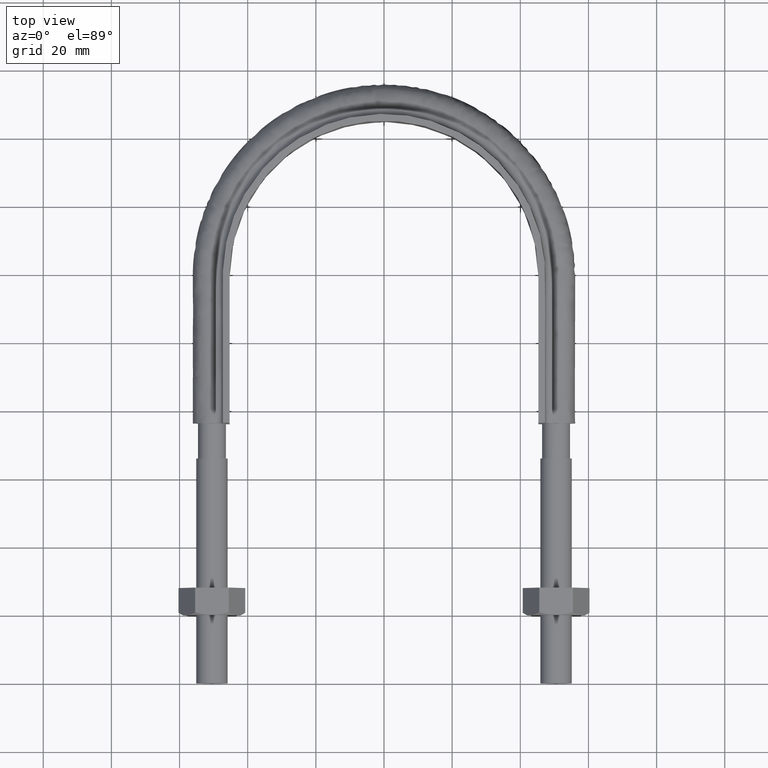
[diagram: clean part render]
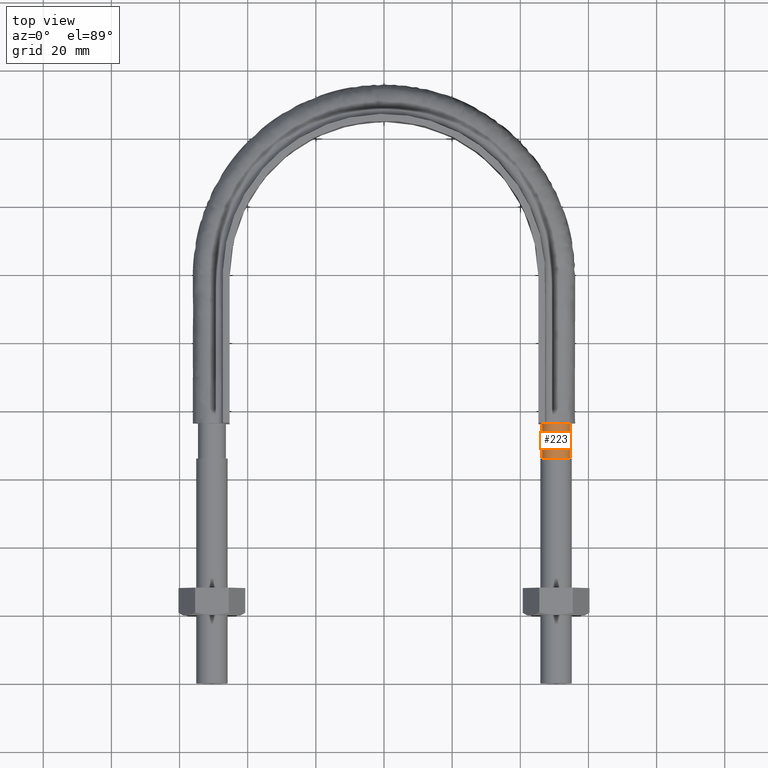
[diagram: same view with one face highlighted and labeled with its STEP entity id]
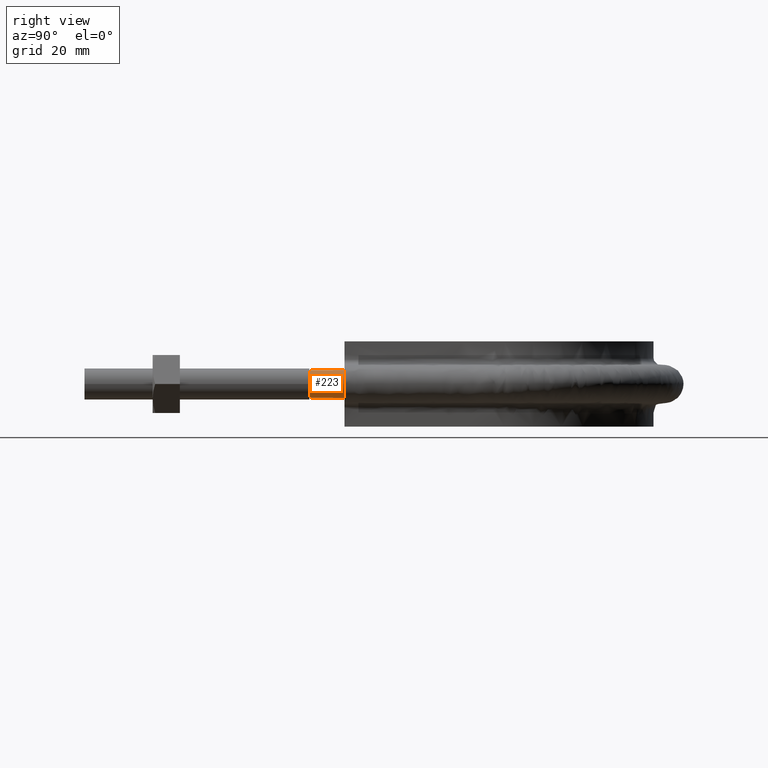
[diagram: same view with one face highlighted and labeled with its STEP entity id]
A machine part, top view. The second image highlights one B-rep face of the part: STEP entity #223.
A second angle (right view) of the same face is appended — the face is thin or edge-on in the first view.
In plain terms, the highlighted cylindrical surface (bore or boss wall) has radius 4.1 mm, axis along (0, 1, 0).
Its self-contained STEP definition (entity closure, byte-faithful):
#223 = ADVANCED_FACE( '', ( #306, #307 ), #308, .T. );
#306 = FACE_OUTER_BOUND( '', #637, .T. );
#307 = FACE_OUTER_BOUND( '', #638, .T. );
#308 = CYLINDRICAL_SURFACE( '', #639, 4.10000000000000 );
#637 = EDGE_LOOP( '', ( #1489, #1490, #1491, #1492, #1493, #1494, #1495 ) );
#638 = EDGE_LOOP( '', ( #1496 ) );
#639 = AXIS2_PLACEMENT_3D( '', #1497, #1498, #1499 );
#1489 = ORIENTED_EDGE( '', *, *, #2013, .T. );
#1490 = ORIENTED_EDGE( '', *, *, #2014, .T. );
#1491 = ORIENTED_EDGE( '', *, *, #2015, .T. );
#1492 = ORIENTED_EDGE( '', *, *, #2016, .T. );
#1493 = ORIENTED_EDGE( '', *, *, #2017, .T. );
#1494 = ORIENTED_EDGE( '', *, *, #2018, .T. );
#1495 = ORIENTED_EDGE( '', *, *, #2019, .T. );
#1496 = ORIENTED_EDGE( '', *, *, #2020, .T. );
#1497 = CARTESIAN_POINT( '', ( 50.5000000000000, 76.3000000000000, 2.33899813580074E-015 ) );
#1498 = DIRECTION( '', ( 2.44921270764475E-016, 1.00000000000000, 6.12303176911189E-017 ) );
#1499 = DIRECTION( '', ( 1.00000000000000, -2.44921270764475E-016, -7.49830360911069E-033 ) );
#2013 = EDGE_CURVE( '', #2171, #2169, #2180, .T. );
#2014 = EDGE_CURVE( '', #2169, #2167, #2181, .T. );
#2015 = EDGE_CURVE( '', #2167, #2166, #2182, .T. );
#2016 = EDGE_CURVE( '', #2166, #2177, #2183, .T. );
#2017 = EDGE_CURVE( '', #2177, #2175, #2184, .T. );
#2018 = EDGE_CURVE( '', #2175, #2173, #2185, .T. );
#2019 = EDGE_CURVE( '', #2173, #2171, #2186, .T. );
#2020 = EDGE_CURVE( '', #2187, #2187, #2188, .F. );
#2166 = VERTEX_POINT( '', #2437 );
#2167 = VERTEX_POINT( '', #2438 );
#2169 = VERTEX_POINT( '', #2443 );
#2171 = VERTEX_POINT( '', #2448 );
#2173 = VERTEX_POINT( '', #2453 );
#2175 = VERTEX_POINT( '', #2458 );
#2177 = VERTEX_POINT( '', #2463 );
#2180 = CIRCLE( '', #2472, 4.10000000000000 );
#2181 = CIRCLE( '', #2473, 4.10000000000000 );
#2182 = CIRCLE( '', #2474, 4.10000000000000 );
#2183 = CIRCLE( '', #2475, 4.10000000000000 );
#2184 = CIRCLE( '', #2476, 4.10000000000000 );
#2185 = CIRCLE( '', #2477, 4.10000000000000 );
#2186 = CIRCLE( '', #2478, 4.10000000000000 );
#2187 = VERTEX_POINT( '', #2479 );
#2188 = CIRCLE( '', #2480, 4.10000000000000 );
#2437 = CARTESIAN_POINT( '', ( 46.4000000000000, 76.3000000000000, 4.33680868994202E-016 ) );
#2438 = CARTESIAN_POINT( '', ( 47.9436918123790, 76.3000000000000, 3.20550907811873 ) );
#2443 = CARTESIAN_POINT( '', ( 51.4123358292208, 76.3000000000000, 3.99720443994551 ) );
#2448 = CARTESIAN_POINT( '', ( 54.1939723583999, 76.3000000000000, 1.77892333038198 ) );
#2453 = CARTESIAN_POINT( '', ( 54.1939723583998, 76.3000000000000, -1.77892333038233 ) );
#2458 = CARTESIAN_POINT( '', ( 51.4123358292205, 76.3000000000000, -3.99720443994556 ) );
#2463 = CARTESIAN_POINT( '', ( 47.9436918123792, 76.3000000000000, -3.20550907811892 ) );
#2472 = AXIS2_PLACEMENT_3D( '', #3093, #3094, #3095 );
#2473 = AXIS2_PLACEMENT_3D( '', #3096, #3097, #3098 );
#2474 = AXIS2_PLACEMENT_3D( '', #3099, #3100, #3101 );
#2475 = AXIS2_PLACEMENT_3D( '', #3102, #3103, #3104 );
#2476 = AXIS2_PLACEMENT_3D( '', #3105, #3106, #3107 );
#2477 = AXIS2_PLACEMENT_3D( '', #3108, #3109, #3110 );
#2478 = AXIS2_PLACEMENT_3D( '', #3111, #3112, #3113 );
#2479 = CARTESIAN_POINT( '', ( 54.6000000000000, 66.0000000000000, 1.70832586358222E-015 ) );
#2480 = AXIS2_PLACEMENT_3D( '', #3114, #3115, #3116 );
#3093 = CARTESIAN_POINT( '', ( 50.5000000000000, 76.3000000000000, 2.33899813580074E-015 ) );
#3094 = DIRECTION( '', ( -2.44921270764475E-016, -1.00000000000000, -6.12303176911189E-017 ) );
#3095 = DIRECTION( '', ( 1.00000000000000, -2.44921270764475E-016, -7.49830360911069E-033 ) );
#3096 = CARTESIAN_POINT( '', ( 50.5000000000000, 76.3000000000000, 2.33899813580074E-015 ) );
#3097 = DIRECTION( '', ( -2.44921270764475E-016, -1.00000000000000, -6.12303176911189E-017 ) );
#3098 = DIRECTION( '', ( 1.00000000000000, -2.44921270764475E-016, -7.49830360911069E-033 ) );
#3099 = CARTESIAN_POINT( '', ( 50.5000000000000, 76.3000000000000, 2.33899813580074E-015 ) );
#3100 = DIRECTION( '', ( -2.44921270764475E-016, -1.00000000000000, -6.12303176911189E-017 ) );
#3101 = DIRECTION( '', ( 1.00000000000000, -2.44921270764475E-016, -7.49830360911069E-033 ) );
#3102 = CARTESIAN_POINT( '', ( 50.5000000000000, 76.3000000000000, 2.33899813580074E-015 ) );
#3103 = DIRECTION( '', ( -2.44921270764475E-016, -1.00000000000000, -6.12303176911189E-017 ) );
#3104 = DIRECTION( '', ( 1.00000000000000, -2.44921270764475E-016, -7.49830360911069E-033 ) );
#3105 = CARTESIAN_POINT( '', ( 50.5000000000000, 76.3000000000000, 2.33899813580074E-015 ) );
#3106 = DIRECTION( '', ( -2.44921270764475E-016, -1.00000000000000, -6.12303176911189E-017 ) );
#3107 = DIRECTION( '', ( 1.00000000000000, -2.44921270764475E-016, -7.49830360911069E-033 ) );
#3108 = CARTESIAN_POINT( '', ( 50.5000000000000, 76.3000000000000, 2.33899813580074E-015 ) );
#3109 = DIRECTION( '', ( -2.44921270764475E-016, -1.00000000000000, -6.12303176911189E-017 ) );
#3110 = DIRECTION( '', ( 1.00000000000000, -2.44921270764475E-016, -7.49830360911069E-033 ) );
#3111 = CARTESIAN_POINT( '', ( 50.5000000000000, 76.3000000000000, 2.33899813580074E-015 ) );
#3112 = DIRECTION( '', ( -2.44921270764475E-016, -1.00000000000000, -6.12303176911189E-017 ) );
#3113 = DIRECTION( '', ( 1.00000000000000, -2.44921270764475E-016, -7.49830360911069E-033 ) );
#3114 = CARTESIAN_POINT( '', ( 50.5000000000000, 66.0000000000000, 1.70832586358222E-015 ) );
#3115 = DIRECTION( '', ( -2.44921270764476E-016, -1.00000000000000, -6.12303176911189E-017 ) );
#3116 = DIRECTION( '', ( 1.00000000000000, -2.44921270764476E-016, 0.000000000000000 ) );